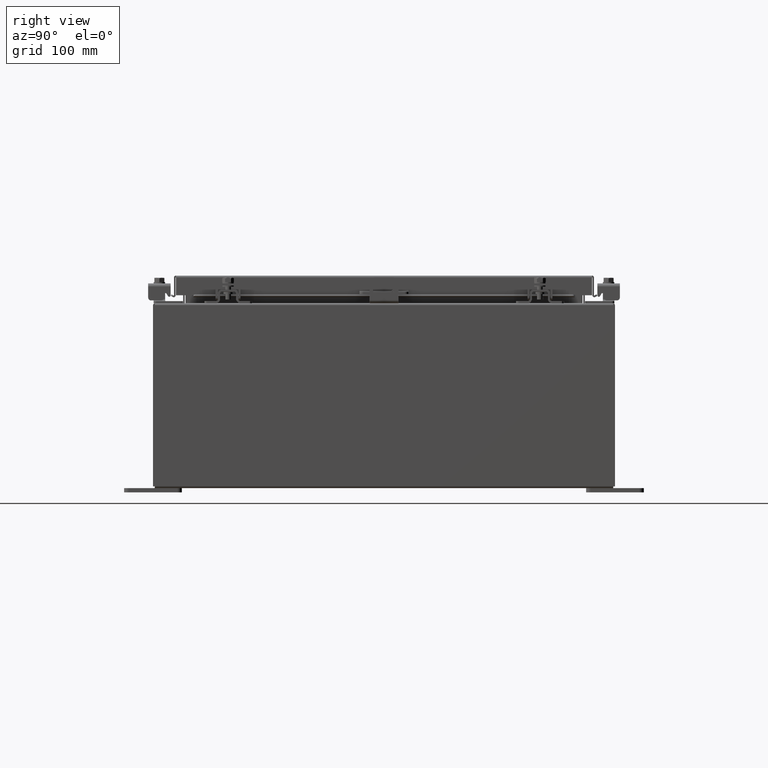
[diagram: clean part render]
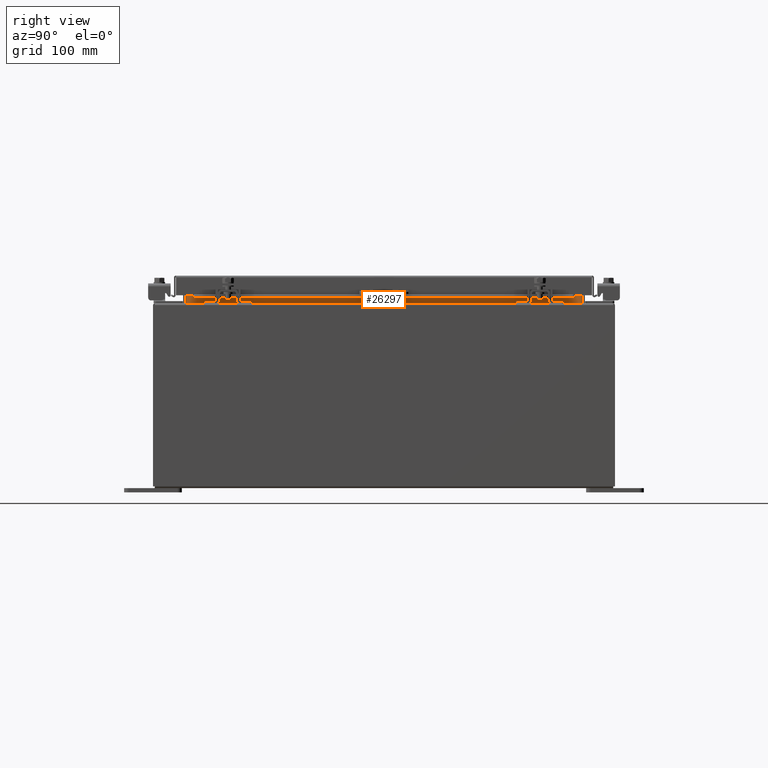
[diagram: same view with one face highlighted and labeled with its STEP entity id]
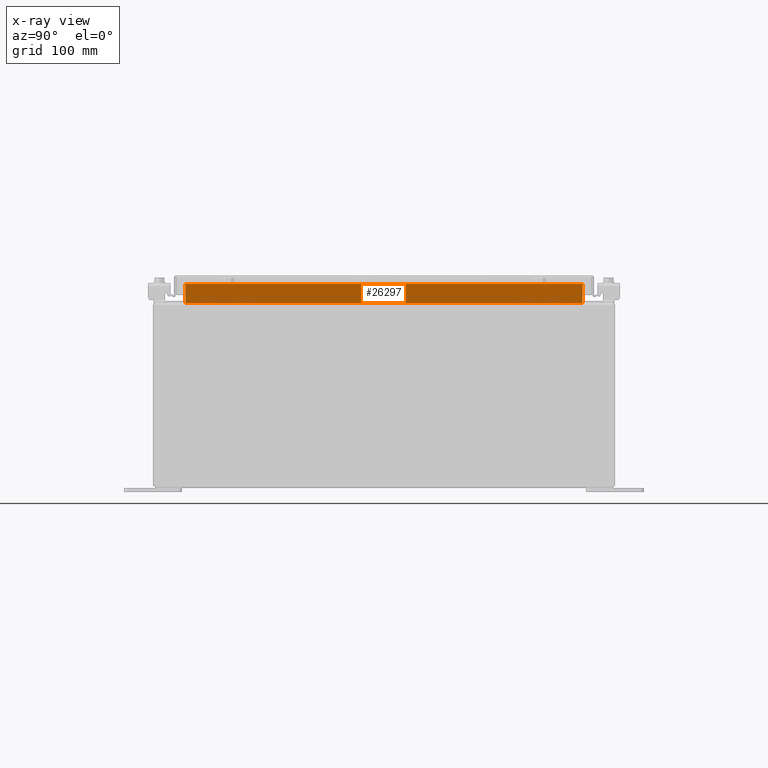
[diagram: x-ray of the same camera — body ghosted, the highlighted face saturated]
A machine part, right view. The second image highlights one B-rep face of the part: STEP entity #26297.
The next image is the same camera in x-ray: the body ghosted, the highlighted face saturated — about 0% of this face is hidden behind the body in this view.
In plain terms, the highlighted planar face has unit normal (1, 0, -0).
Its self-contained STEP definition (entity closure, byte-faithful):
#862 = CARTESIAN_POINT ( 'NONE',  ( 8.699700000000026600, 8.593749999999994700, 7.938300000000008800 ) ) ;
#990 = EDGE_LOOP ( 'NONE', ( #5674, #1638, #20766, #21434 ) ) ;
#1638 = ORIENTED_EDGE ( 'NONE', *, *, #6771, .F. ) ;
#4423 = FACE_OUTER_BOUND ( 'NONE', #990, .T. ) ;
#5674 = ORIENTED_EDGE ( 'NONE', *, *, #11431, .F. ) ;
#5976 = DIRECTION ( 'NONE',  ( 1.000000000000000000, 1.271551066141907300E-016, -3.542869979895294000E-015 ) ) ;
#6771 = EDGE_CURVE ( 'NONE', #21233, #27347, #19436, .T. ) ;
#7896 = DIRECTION ( 'NONE',  ( -3.542869979895294000E-015, -0.0000000000000000000, -1.000000000000000000 ) ) ;
#8964 = DIRECTION ( 'NONE',  ( 0.0000000000000000000, 1.000000000000000000, 0.0000000000000000000 ) ) ;
#9448 = EDGE_CURVE ( 'NONE', #26809, #27766, #17791, .T. ) ;
#9496 = VECTOR ( 'NONE', #7896, 39.37007874015748100 ) ;
#11301 = CARTESIAN_POINT ( 'NONE',  ( 8.699700000000035500, 8.593749999999994700, 8.762900000000010800 ) ) ;
#11431 = EDGE_CURVE ( 'NONE', #27347, #26809, #22323, .T. ) ;
#11753 = VECTOR ( 'NONE', #21466, 39.37007874015748100 ) ;
#12730 = PLANE ( 'NONE',  #23774 ) ;
#14508 = CARTESIAN_POINT ( 'NONE',  ( 8.699700000000028400, 8.593749999999994700, 7.938300000000010600 ) ) ;
#16627 = CARTESIAN_POINT ( 'NONE',  ( 8.699700000000033700, -8.593750000000003600, 8.762900000000010800 ) ) ;
#17667 = CARTESIAN_POINT ( 'NONE',  ( 8.699700000000033700, -8.593750000000003600, 8.850600000000010700 ) ) ;
#17791 = LINE ( 'NONE', #862, #11753 ) ;
#19436 = LINE ( 'NONE', #22599, #24023 ) ;
#19447 = CARTESIAN_POINT ( 'NONE',  ( 8.699700000000028400, -8.593750000000005300, 7.938300000000010600 ) ) ;
#19620 = CARTESIAN_POINT ( 'NONE',  ( 8.699700000000001800, 1.106211281011475100E-015, -3.082190596409509600E-014 ) ) ;
#19985 = DIRECTION ( 'NONE',  ( 3.542869979895298400E-015, -0.0000000000000000000, 1.000000000000000000 ) ) ;
#20766 = ORIENTED_EDGE ( 'NONE', *, *, #29106, .F. ) ;
#21051 = LINE ( 'NONE', #17667, #27054 ) ;
#21233 = VERTEX_POINT ( 'NONE', #16627 ) ;
#21434 = ORIENTED_EDGE ( 'NONE', *, *, #9448, .F. ) ;
#21466 = DIRECTION ( 'NONE',  ( 3.178877665354779500E-016, -1.000000000000000000, 2.543102132283823400E-016 ) ) ;
#21888 = DIRECTION ( 'NONE',  ( -3.542869979895294000E-015, 0.0000000000000000000, -1.000000000000000000 ) ) ;
#22323 = LINE ( 'NONE', #23805, #9496 ) ;
#22599 = CARTESIAN_POINT ( 'NONE',  ( 8.699700000000035500, -8.593750000000003600, 8.762900000000010800 ) ) ;
#23774 = AXIS2_PLACEMENT_3D ( 'NONE', #19620, #5976, #21888 ) ;
#23805 = CARTESIAN_POINT ( 'NONE',  ( 8.699700000000028400, 8.593749999999994700, 7.925300000000008900 ) ) ;
#24023 = VECTOR ( 'NONE', #8964, 39.37007874015748100 ) ;
#26297 = ADVANCED_FACE ( 'NONE', ( #4423 ), #12730, .T. ) ;
#26809 = VERTEX_POINT ( 'NONE', #14508 ) ;
#27054 = VECTOR ( 'NONE', #19985, 39.37007874015748100 ) ;
#27347 = VERTEX_POINT ( 'NONE', #11301 ) ;
#27766 = VERTEX_POINT ( 'NONE', #19447 ) ;
#29106 = EDGE_CURVE ( 'NONE', #27766, #21233, #21051, .T. ) ;